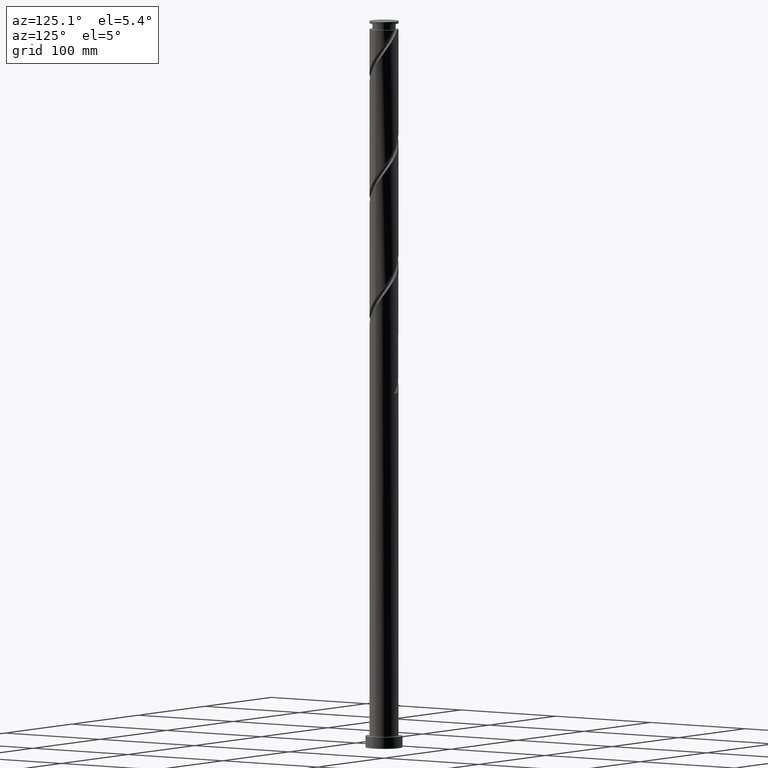
[diagram: clean part render]
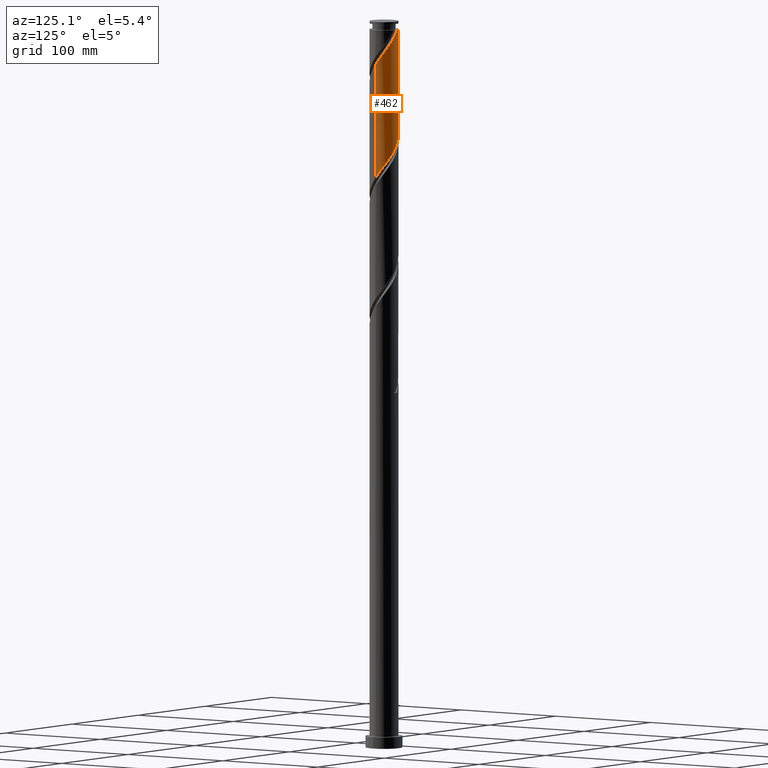
[diagram: same view with one face highlighted and labeled with its STEP entity id]
A machine part, auxiliary view. The second image highlights one B-rep face of the part: STEP entity #462.
In plain terms, the highlighted cylindrical surface (edge-blend (fillet) strip) has radius 12.5 mm, axis along (-0, -0, -1).
Its self-contained STEP definition (entity closure, byte-faithful):
#1 = CARTESIAN_POINT ( 'NONE',  ( -2.105715026522275046, 12.32136210924256403, 524.0893023882531452 ) ) ;
#11 = CARTESIAN_POINT ( 'NONE',  ( 12.50000000000000000, -7.768146585724579434E-15, 495.0110405747118989 ) ) ;
#47 = CARTESIAN_POINT ( 'NONE',  ( 12.37414804329440088, 2.114736117984113761, 497.8393023882529747 ) ) ;
#75 = EDGE_CURVE ( 'NONE', #1804, #1002, #291, .T. ) ;
#154 = CARTESIAN_POINT ( 'NONE',  ( 9.856990158513978528, 7.686985430905863836, 604.3834200353120423 ) ) ;
#161 = CARTESIAN_POINT ( 'NONE',  ( 8.276676303276255808, 9.367317084992148324, 607.4716553294297228 ) ) ;
#166 = CARTESIAN_POINT ( 'NONE',  ( -7.408666546675603648, 10.13426409001871598, 531.8098906235471759 ) ) ;
#170 = CARTESIAN_POINT ( 'NONE',  ( 0.9639726868114796288, 12.51648534154676540, 618.2804788588414340 ) ) ;
#196 = CARTESIAN_POINT ( 'NONE',  ( 7.719917236855198261, 9.899218479363870671, 510.1922435647236966 ) ) ;
#205 = AXIS2_PLACEMENT_3D ( 'NONE', #1065, #221, #1043 ) ;
#221 = DIRECTION ( 'NONE',  ( -0.000000000000000000, -0.000000000000000000, -1.000000000000000000 ) ) ;
#265 = CARTESIAN_POINT ( 'NONE',  ( -12.50000000000000000, 0.000000000000000000, 630.0000000000000000 ) ) ;
#291 = LINE ( 'NONE', #265, #849 ) ;
#314 = CARTESIAN_POINT ( 'NONE',  ( 12.50000000000002132, -4.780397898907402125E-16, 593.3146230253239537 ) ) ;
#351 = CARTESIAN_POINT ( 'NONE',  ( 10.56929425715108373, 6.773600781846147889, 602.8393023882531452 ) ) ;
#357 = VERTEX_POINT ( 'NONE', #871 ) ;
#375 = FACE_OUTER_BOUND ( 'NONE', #1843, .T. ) ;
#378 = ORIENTED_EDGE ( 'NONE', *, *, #75, .F. ) ;
#382 = CARTESIAN_POINT ( 'NONE',  ( 12.46309222167392505, 0.9598605492731320243, 496.2951847411944755 ) ) ;
#448 = CARTESIAN_POINT ( 'NONE',  ( -12.49999999999993783, 0.000000000000000000, 622.9128318000178979 ) ) ;
#462 = ADVANCED_FACE ( 'NONE', ( #375 ), #715, .T. ) ;
#504 = EDGE_CURVE ( 'NONE', #1804, #721, #1374, .T. ) ;
#522 = CARTESIAN_POINT ( 'NONE',  ( 5.769494353270745890, 11.14919654296443419, 513.2804788588412066 ) ) ;
#527 = CARTESIAN_POINT ( 'NONE',  ( 6.414510163309526725, 10.72865599060755137, 610.5598906235472896 ) ) ;
#534 = CARTESIAN_POINT ( 'NONE',  ( 8.563682417406971226, 9.105676441308178326, 508.6481259176649701 ) ) ;
#548 = CARTESIAN_POINT ( 'NONE',  ( 11.77487291607571329, 4.352472453254554452, 500.9275376823708825 ) ) ;
#554 = ORIENTED_EDGE ( 'NONE', *, *, #504, .T. ) ;
#646 = CARTESIAN_POINT ( 'NONE',  ( 1.352338926301693611, 12.48049790971827733, 519.4569494470765676 ) ) ;
#653 =( BOUNDED_CURVE ( )  B_SPLINE_CURVE ( 2, ( #1365, #1851, #1842, #2024, #1679, #1162, #1665, #351, #154, #1023, #161, #1015, #527, #1174, #1338, #1201, #1689, #170, #1503, #826, #851 ),
 .UNSPECIFIED., .F., .T. ) 
 B_SPLINE_CURVE_WITH_KNOTS ( ( 3, 2, 2, 2, 2, 2, 2, 2, 2, 2, 3 ),
 ( 0.6795293573162903833, 0.6838235294117647189, 0.6911764705882353921, 0.6985294117647059542, 0.7058823529411766273, 0.7132352941176473005, 0.7205882352941178626, 0.7279411764705886467, 0.7352941176470592088, 0.7426470588235298820, 0.7500000000000004441 ),
 .UNSPECIFIED. ) 
 CURVE ( )  GEOMETRIC_REPRESENTATION_ITEM ( )  RATIONAL_B_SPLINE_CURVE ( ( 0.9072066346052969354, 0.9068261157890640245, 0.9090909090909354839, 0.9052128875409666264, 0.9090909090909354839, 0.9052128875409666264, 0.9090909090909354839, 0.9052128875409666264, 0.9090909090909354839, 0.9052128875409666264, 0.9090909090909354839, 0.9052128875409666264, 0.9090909090909354839, 0.9052128875409666264, 0.9090909090909354839, 0.9052128875409666264, 0.9090909090909354839, 0.9052128875409666264, 0.9090909090909354839, 0.9052128875409662934, 0.9090909090909358170 ) ) 
 REPRESENTATION_ITEM ( '' )  );
#657 = CARTESIAN_POINT ( 'NONE',  ( -12.30248021171700934, 2.498125154267604842, 544.1628318000178979 ) ) ;
#668 = CARTESIAN_POINT ( 'NONE',  ( -12.50000000000000355, 0.000000000000000000, 547.5110405747120694 ) ) ;
#690 = CARTESIAN_POINT ( 'NONE',  ( 12.49999999999999822, 0.4806398485960293177, 495.6544463267715628 ) ) ;
#715 = CYLINDRICAL_SURFACE ( 'NONE', #205, 12.50000000000000000 ) ;
#721 = VERTEX_POINT ( 'NONE', #1465 ) ;
#805 =( BOUNDED_CURVE ( )  B_SPLINE_CURVE ( 2, ( #992, #1342, #1499, #657, #1334, #2012, #1169, #1847, #1011, #1675, #1476, #166, #1857, #1838, #846, #1004, #1, #1354, #1019, #646, #981, #1405, #1361, #522, #1049, #196, #534, #1867, #1209, #2072, #1061, #548, #1878, #47, #382, #690, #11 ),
 .UNSPECIFIED., .F., .T. ) 
 B_SPLINE_CURVE_WITH_KNOTS ( ( 3, 2, 2, 2, 2, 2, 2, 2, 2, 2, 2, 2, 2, 2, 2, 2, 2, 2, 3 ),
 ( 0.4295293573162900502, 0.4338235294117647189, 0.4411764705882352811, 0.4485294117647058987, 0.4558823529411764608, 0.4632352941176470784, 0.4705882352941176405, 0.4779411764705882582, 0.4852941176470588203, 0.4926470588235294379, 0.5000000000000000000, 0.5073529411764705621, 0.5147058823529411242, 0.5220588235294117974, 0.5294117647058823595, 0.5367647058823529216, 0.5441176470588234837, 0.5514705882352941568, 0.5545293573162904943 ),
 .UNSPECIFIED. ) 
 CURVE ( )  GEOMETRIC_REPRESENTATION_ITEM ( )  RATIONAL_B_SPLINE_CURVE ( ( 0.9072066346052910513, 0.9068261157890578072, 0.9090909090909291557, 0.9052128875409607422, 0.9090909090909291557, 0.9052128875409607422, 0.9090909090909291557, 0.9052128875409607422, 0.9090909090909291557, 0.9052128875409607422, 0.9090909090909291557, 0.9052128875409607422, 0.9090909090909291557, 0.9052128875409607422, 0.9090909090909291557, 0.9052128875409607422, 0.9090909090909291557, 0.9052128875409607422, 0.9090909090909291557, 0.9052128875409607422, 0.9090909090909291557, 0.9052128875409607422, 0.9090909090909291557, 0.9052128875409607422, 0.9090909090909291557, 0.9052128875409607422, 0.9090909090909291557, 0.9052128875409607422, 0.9090909090909291557, 0.9052128875409607422, 0.9090909090909291557, 0.9052128875409607422, 0.9090909090909291557, 0.9052128875409607422, 0.9090909090909291557, 0.9074776808428317576, 0.9072066346052909402 ) ) 
 REPRESENTATION_ITEM ( '' )  );
#824 = VECTOR ( 'NONE', #875, 1000.000000000000000 ) ;
#826 = CARTESIAN_POINT ( 'NONE',  ( -1.352338926301764666, 12.48049790971830042, 621.3687141529591145 ) ) ;
#846 = CARTESIAN_POINT ( 'NONE',  ( -4.333905573088250307, 11.72464338406736317, 527.1775376823708257 ) ) ;
#849 = VECTOR ( 'NONE', #1469, 1000.000000000000000 ) ;
#851 = CARTESIAN_POINT ( 'NONE',  ( -2.487468592766752806, 12.24999999999988454, 622.9128318000182389 ) ) ;
#871 = CARTESIAN_POINT ( 'NONE',  ( 12.50000000000000000, -7.768146585724579434E-15, 495.0110405747118989 ) ) ;
#875 = DIRECTION ( 'NONE',  ( -0.000000000000000000, -0.000000000000000000, -1.000000000000000000 ) ) ;
#936 = DIRECTION ( 'NONE',  ( -0.000000000000000000, -0.000000000000000000, -1.000000000000000000 ) ) ;
#981 = CARTESIAN_POINT ( 'NONE',  ( 2.487468592766561848, 12.25000000000000000, 517.9128318000178979 ) ) ;
#992 = CARTESIAN_POINT ( 'NONE',  ( -12.50000000000000178, 0.000000000000000000, 547.5110405747120694 ) ) ;
#1002 = VERTEX_POINT ( 'NONE', #668 ) ;
#1004 = CARTESIAN_POINT ( 'NONE',  ( -3.247457366233077458, 12.12623887693837688, 525.6334200353120423 ) ) ;
#1011 = CARTESIAN_POINT ( 'NONE',  ( -9.856990158513969646, 7.686985430905852290, 536.4422435647238672 ) ) ;
#1015 = CARTESIAN_POINT ( 'NONE',  ( 7.408666546675614306, 10.13426409001873729, 609.0157729764885062 ) ) ;
#1019 = CARTESIAN_POINT ( 'NONE',  ( 0.1941831197451102387, 12.49849162563251603, 521.0010670941355784 ) ) ;
#1023 = CARTESIAN_POINT ( 'NONE',  ( 9.144686059876885764, 8.600370079965570014, 605.9275376823709394 ) ) ;
#1043 = DIRECTION ( 'NONE',  ( -1.000000000000000000, 0.000000000000000000, 0.000000000000000000 ) ) ;
#1049 = CARTESIAN_POINT ( 'NONE',  ( 6.744705795062973408, 10.52420751116415509, 511.7363612117826506 ) ) ;
#1061 = CARTESIAN_POINT ( 'NONE',  ( 11.27474576508963366, 5.397231506299640102, 502.4716553294296091 ) ) ;
#1065 = CARTESIAN_POINT ( 'NONE',  ( 0.000000000000000000, 0.000000000000000000, 630.0000000000000000 ) ) ;
#1094 = EDGE_CURVE ( 'NONE', #1002, #357, #805, .T. ) ;
#1155 = LINE ( 'NONE', #1702, #824 ) ;
#1162 = CARTESIAN_POINT ( 'NONE',  ( 11.63397781496923677, 4.716164633139658946, 599.7510670941353510 ) ) ;
#1169 = CARTESIAN_POINT ( 'NONE',  ( -11.10163603606014249, 5.744882707492896756, 539.5304788588414340 ) ) ;
#1174 = CARTESIAN_POINT ( 'NONE',  ( 5.420353779943436479, 11.32304789119637078, 612.1040082706060730 ) ) ;
#1201 = CARTESIAN_POINT ( 'NONE',  ( 3.247457366233081899, 12.12623887693839642, 615.1922435647237535 ) ) ;
#1209 = CARTESIAN_POINT ( 'NONE',  ( 10.09103310603113712, 7.377062481298612973, 505.5598906235475170 ) ) ;
#1284 = CARTESIAN_POINT ( 'NONE',  ( 0.000000000000000000, 0.000000000000000000, 622.9128318000178979 ) ) ;
#1334 = CARTESIAN_POINT ( 'NONE',  ( -11.96822901334311418, 3.607144893703627453, 542.6187141529591145 ) ) ;
#1338 = CARTESIAN_POINT ( 'NONE',  ( 4.333905573088263630, 11.72464338406737738, 613.6481259176648564 ) ) ;
#1342 = CARTESIAN_POINT ( 'NONE',  ( -12.50000000000000888, 0.6752497959907448610, 546.6071213426993154 ) ) ;
#1354 = CARTESIAN_POINT ( 'NONE',  ( -0.9639726868114723013, 12.51648534154674586, 522.5451847411942481 ) ) ;
#1361 = CARTESIAN_POINT ( 'NONE',  ( 4.696046306251081326, 11.58434931662308109, 514.8245965059003311 ) ) ;
#1365 = CARTESIAN_POINT ( 'NONE',  ( 12.50000000000002132, -4.780397898907402125E-16, 593.3146230253239537 ) ) ;
#1373 = ORIENTED_EDGE ( 'NONE', *, *, #1526, .T. ) ;
#1374 = CIRCLE ( 'NONE', #1717, 12.49999999999993783 ) ;
#1405 = CARTESIAN_POINT ( 'NONE',  ( 3.622598259231422091, 12.01950209028172090, 516.3687141529588871 ) ) ;
#1465 = CARTESIAN_POINT ( 'NONE',  ( -2.487468592766752806, 12.24999999999988454, 622.9128318000182389 ) ) ;
#1469 = DIRECTION ( 'NONE',  ( -0.000000000000000000, -0.000000000000000000, -1.000000000000000000 ) ) ;
#1476 = CARTESIAN_POINT ( 'NONE',  ( -8.276676303276238045, 9.367317084992135889, 533.3540082706060730 ) ) ;
#1499 = CARTESIAN_POINT ( 'NONE',  ( -12.42725830588523195, 1.346570086852729942, 545.7069494470767950 ) ) ;
#1503 = CARTESIAN_POINT ( 'NONE',  ( -0.1941831197451120705, 12.49849162563253380, 619.8245965059004448 ) ) ;
#1526 = EDGE_CURVE ( 'NONE', #1805, #357, #1155, .T. ) ;
#1603 = DIRECTION ( 'NONE',  ( -1.000000000000000000, 0.000000000000000000, 0.000000000000000000 ) ) ;
#1665 = CARTESIAN_POINT ( 'NONE',  ( 11.10163603606015847, 5.744882707492903862, 601.2951847411943618 ) ) ;
#1675 = CARTESIAN_POINT ( 'NONE',  ( -9.144686059876869777, 8.600370079965557579, 534.8981259176648564 ) ) ;
#1679 = CARTESIAN_POINT ( 'NONE',  ( 11.96822901334313016, 3.607144893703626121, 598.2069494470767950 ) ) ;
#1689 = CARTESIAN_POINT ( 'NONE',  ( 2.105715026522281708, 12.32136210924258179, 616.7363612117824232 ) ) ;
#1702 = CARTESIAN_POINT ( 'NONE',  ( 12.50000000000000000, 1.530808498934191521E-15, 630.0000000000000000 ) ) ;
#1717 = AXIS2_PLACEMENT_3D ( 'NONE', #1284, #936, #1603 ) ;
#1745 = ORIENTED_EDGE ( 'NONE', *, *, #2094, .F. ) ;
#1758 = ORIENTED_EDGE ( 'NONE', *, *, #1094, .F. ) ;
#1804 = VERTEX_POINT ( 'NONE', #448 ) ;
#1805 = VERTEX_POINT ( 'NONE', #314 ) ;
#1838 = CARTESIAN_POINT ( 'NONE',  ( -5.420353779943423156, 11.32304789119635302, 528.7216553294294954 ) ) ;
#1842 = CARTESIAN_POINT ( 'NONE',  ( 12.42725830588524971, 1.346570086852729498, 595.1187141529591145 ) ) ;
#1843 = EDGE_LOOP ( 'NONE', ( #1745, #1373, #1758, #378, #554 ) ) ;
#1847 = CARTESIAN_POINT ( 'NONE',  ( -10.56929425715106063, 6.773600781846143448, 537.9863612117824232 ) ) ;
#1851 = CARTESIAN_POINT ( 'NONE',  ( 12.50000000000002487, 0.6752497959907937108, 594.2185422573367077 ) ) ;
#1857 = CARTESIAN_POINT ( 'NONE',  ( -6.414510163309515178, 10.72865599060753539, 530.2657729764885062 ) ) ;
#1867 = CARTESIAN_POINT ( 'NONE',  ( 9.407447597958730867, 8.312134403252487758, 507.1040082706060730 ) ) ;
#1878 = CARTESIAN_POINT ( 'NONE',  ( 12.07451047968505975, 3.233604285619339880, 499.3834200353120423 ) ) ;
#2012 = CARTESIAN_POINT ( 'NONE',  ( -11.63397781496921723, 4.716164633139650064, 541.0745965059002174 ) ) ;
#2024 = CARTESIAN_POINT ( 'NONE',  ( 12.30248021171703243, 2.498125154267603509, 596.6628318000177842 ) ) ;
#2072 = CARTESIAN_POINT ( 'NONE',  ( 10.77461861410353627, 6.441990559344733747, 504.0157729764883925 ) ) ;
#2094 = EDGE_CURVE ( 'NONE', #1805, #721, #653, .T. ) ;